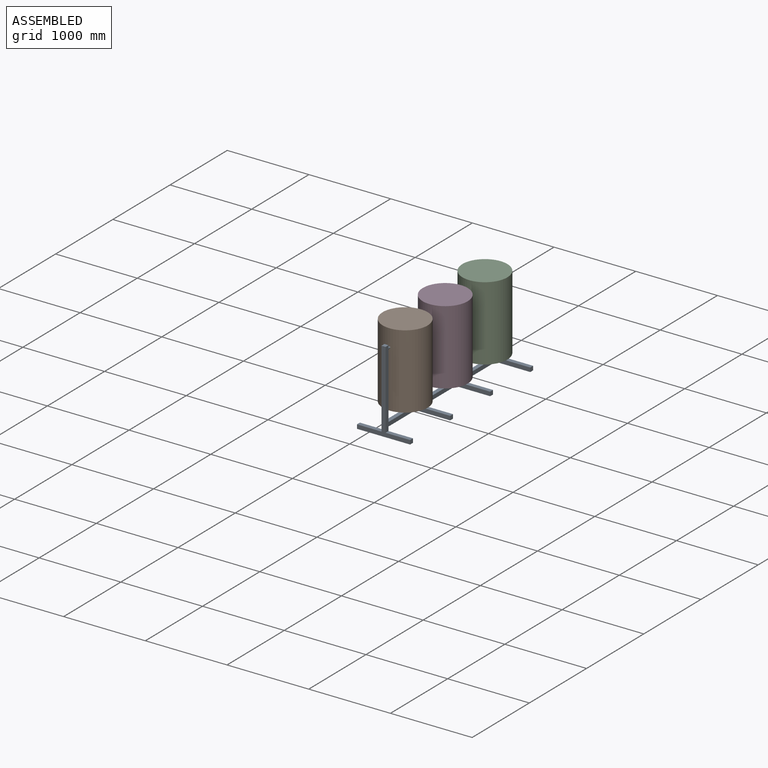
[diagram: assembled view]
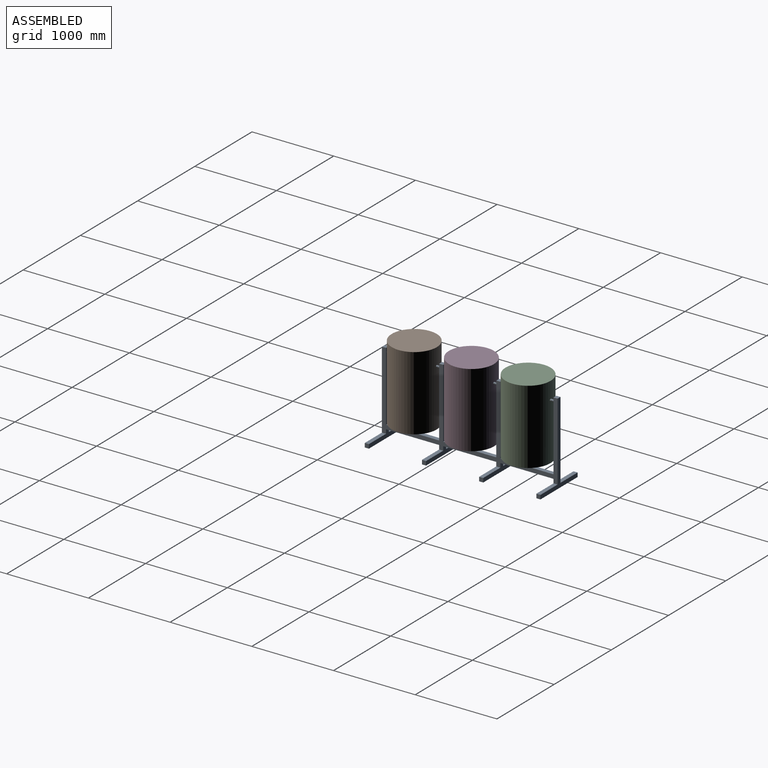
[diagram: assembled view, second angle]
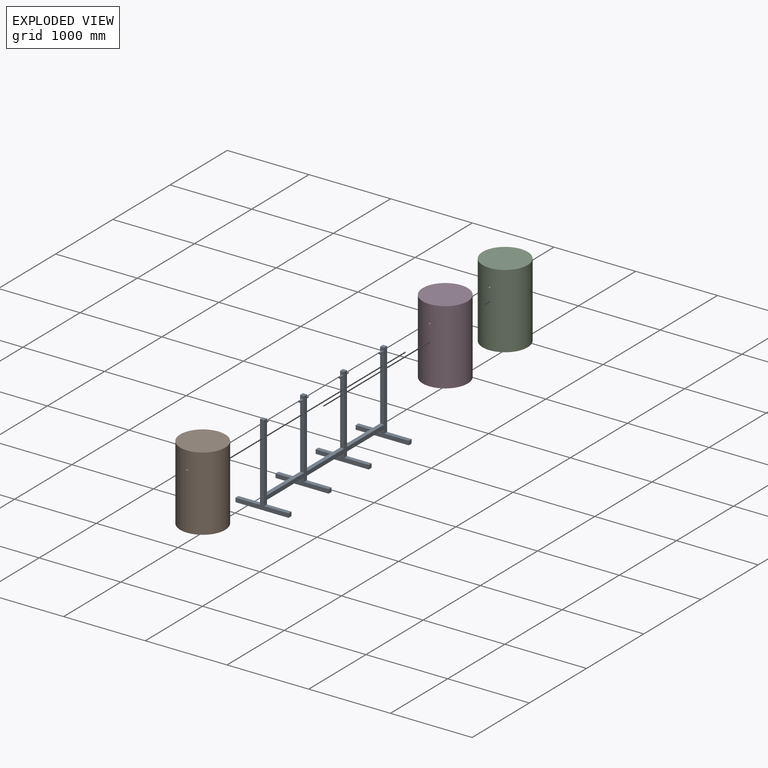
[diagram: exploded view]
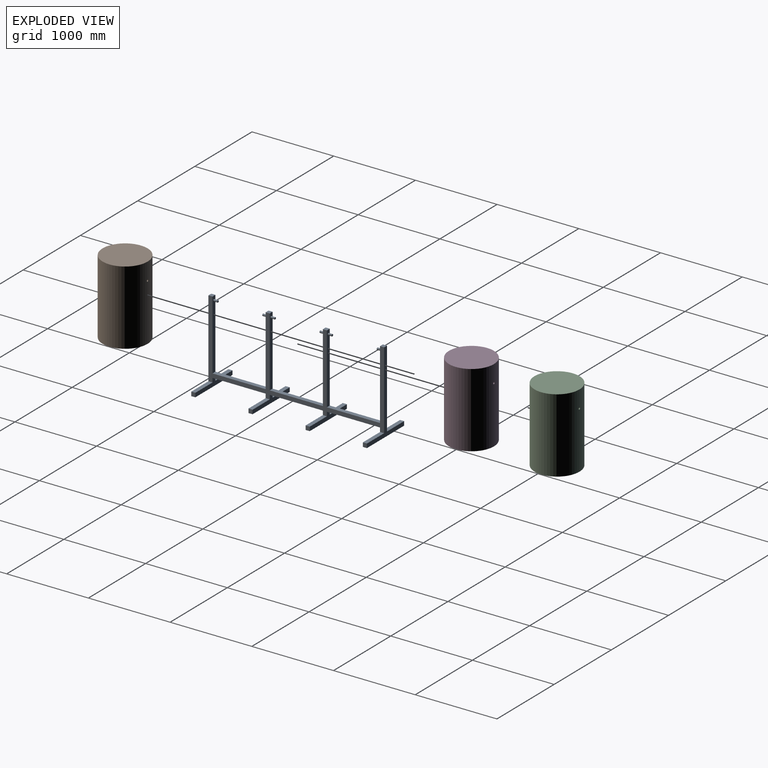
[diagram: exploded view, second angle]
ASSEMBLY  parts=4 mates=3
PART A: 58 faces, bbox 650x2150x1000 mm
  f0: plane 850x50mm, normal (0,-1,0), area 42009.1mm2, adj f4,f10,f31,f39,f54
  f1: plane 850x50mm, normal (0,-1,0), area 42009.1mm2, adj f4,f10,f16,f28,f50
  f2: plane 850x50mm, normal (0,-1,0), area 42009.1mm2, adj f3,f4,f10,f13,f26
  f3: plane 50x50mm, normal (0,0,1), area 2500mm2, adj f2,f4,f10,f12
  f4: plane 2150x950mm, normal (-1,0,0), area 287500mm2, adj f0,f1,f2,f3,f5,f11,f12,f13
  f5: plane 300x50mm, normal (0,0,1), area 15000mm2, adj f4,f6,f11,f12
  f6: plane 50x50mm, normal (-1,0,0), area 2500mm2, adj f5,f7,f11,f12
  f7: plane 650x50mm, normal (0,0,-1), area 32500mm2, adj f6,f8,f11,f12
  f8: plane 50x50mm, normal (1,0,0), area 2500mm2, adj f7,f9,f11,f12
  f9: plane 300x50mm, normal (0,0,1), area 15000mm2, adj f8,f10,f11,f12
  f10: plane 2150x950mm, normal (1,0,0), area 287500mm2, adj f0,f1,f2,f3,f9,f11,f12,f13
  f11: plane 650x100mm, normal (0,-1,0), area 35000mm2, adj f4,f5,f6,f7,f8,f9,f10,f14
  f12: plane 1000x650mm, normal (0,1,0), area 80000mm2, adj f3,f4,f5,f6,f7,f8,f9,f10
  f13: plane 650x50mm, normal (0,0,1), area 32500mm2, adj f2,f4,f10,f23
  f14: plane 650x50mm, normal (0,0,-1), area 32500mm2, adj f4,f10,f11,f15
  f15: plane 650x100mm, normal (0,1,0), area 35000mm2, adj f4,f10,f14,f17,f18,f19,f20,f21
  f16: plane 50x50mm, normal (0,0,1), area 2500mm2, adj f1,f4,f10,f23
  f17: plane 300x50mm, normal (0,0,1), area 15000mm2, adj f4,f15,f18,f22
  f18: plane 50x50mm, normal (-1,0,0), area 2500mm2, adj f15,f17,f19,f22
  f19: plane 650x50mm, normal (0,0,-1), area 32500mm2, adj f15,f18,f20,f22
  f20: plane 50x50mm, normal (1,0,0), area 2500mm2, adj f15,f19,f21,f22
  f21: plane 300x50mm, normal (0,0,1), area 15000mm2, adj f10,f15,f20,f22
  f22: plane 650x100mm, normal (0,-1,0), area 35000mm2, adj f4,f10,f17,f18,f19,f20,f21,f29
  f23: plane 850x50mm, normal (0,1,0), area 42009.1mm2, adj f4,f10,f13,f16,f24
  f24: cylinder r=12.5mm len=50mm, axis (0,-1,0), area 3927mm2, adj f23,f25
  f25: plane 25x25mm, normal (0,1,0), area 490.9mm2, adj f24
  f26: cylinder r=12.5mm len=50mm, axis (0,1,0), area 3927mm2, adj f2,f27
  f27: plane 25x25mm, normal (0,-1,0), area 490.9mm2, adj f26
  f28: plane 650x50mm, normal (0,0,1), area 32500mm2, adj f1,f4,f10,f38
  f29: plane 650x50mm, normal (0,0,-1), area 32500mm2, adj f4,f10,f22,f30
  f30: plane 650x100mm, normal (0,1,0), area 35000mm2, adj f4,f10,f29,f32,f33,f34,f35,f36
  f31: plane 50x50mm, normal (0,0,1), area 2500mm2, adj f0,f4,f10,f38
  f32: plane 300x50mm, normal (0,0,1), area 15000mm2, adj f4,f30,f33,f37
  f33: plane 50x50mm, normal (-1,0,0), area 2500mm2, adj f30,f32,f34,f37
  f34: plane 650x50mm, normal (0,0,-1), area 32500mm2, adj f30,f33,f35,f37
  f35: plane 50x50mm, normal (1,0,0), area 2500mm2, adj f30,f34,f36,f37
  f36: plane 300x50mm, normal (0,0,1), area 15000mm2, adj f10,f30,f35,f37
  f37: plane 650x100mm, normal (0,-1,0), area 35000mm2, adj f4,f10,f32,f33,f34,f35,f36,f40
  f38: plane 850x50mm, normal (0,1,0), area 42009.1mm2, adj f4,f10,f28,f31,f52
  f39: plane 650x50mm, normal (0,0,1), area 32500mm2, adj f0,f4,f10,f49
  f40: plane 650x50mm, normal (0,0,-1), area 32500mm2, adj f4,f10,f37,f41
  f41: plane 650x100mm, normal (0,1,0), area 35000mm2, adj f4,f10,f40,f43,f44,f45,f46,f47
  f42: plane 50x50mm, normal (0,0,1), area 2500mm2, adj f4,f10,f48,f49
  f43: plane 300x50mm, normal (0,0,1), area 15000mm2, adj f4,f41,f44,f48
  f44: plane 50x50mm, normal (-1,0,0), area 2500mm2, adj f41,f43,f45,f48
  f45: plane 650x50mm, normal (0,0,-1), area 32500mm2, adj f41,f44,f46,f48
  f46: plane 50x50mm, normal (1,0,0), area 2500mm2, adj f41,f45,f47,f48
  f47: plane 300x50mm, normal (0,0,1), area 15000mm2, adj f10,f41,f46,f48
  f48: plane 1000x650mm, normal (0,-1,0), area 80000mm2, adj f4,f10,f42,f43,f44,f45,f46,f47
  f49: plane 850x50mm, normal (0,1,0), area 42009.1mm2, adj f4,f10,f39,f42,f56
  f50: cylinder r=12.5mm len=50mm, axis (0,1,0), area 3927mm2, adj f1,f51
  f51: plane 25x25mm, normal (0,-1,0), area 490.9mm2, adj f50
  f52: cylinder r=12.5mm len=50mm, axis (0,-1,0), area 3927mm2, adj f38,f53
  f53: plane 25x25mm, normal (0,1,0), area 490.9mm2, adj f52
  f54: cylinder r=12.5mm len=50mm, axis (0,1,0), area 3927mm2, adj f0,f55
  f55: plane 25x25mm, normal (0,-1,0), area 490.9mm2, adj f54
  f56: cylinder r=12.5mm len=50mm, axis (0,-1,0), area 3927mm2, adj f49,f57
  f57: plane 25x25mm, normal (0,1,0), area 490.9mm2, adj f56
PART B: 4 faces, bbox 550x550x910 mm
  f0: cylinder r=275mm len=910mm, axis (0,0,-1), area 1571380mm2, adj f1,f2,f3
  f1: plane 550x550mm, normal (0,0,1), area 237582.9mm2, adj f0
  f2: plane 550x550mm, normal (0,0,-1), area 237582.9mm2, adj f0
  f3: cylinder r=12.5mm len=550mm, axis (0,-1,0), area 43174.6mm2, adj f0
PART C: same geometry as B
PART D: same geometry as B
PLACE A t=(168.02,2418.37,-119.75)mm
PLACE B t=(226.95,646.67,-106.43)mm
PLACE C t=(226.95,2040.07,-106.43)mm
PLACE D t=(226.95,1346.67,-106.43)mm
MATE revolute A.f24 <-> D.f3  axis (0,1,0) through (226.95,1068.37,593.57)mm
MATE revolute C.f3 <-> A.f24  axis (0,-1,0) through (226.95,2318.37,593.57)mm
MATE revolute A.f24 <-> B.f3  axis (0,1,0) through (226.95,368.37,593.57)mm
